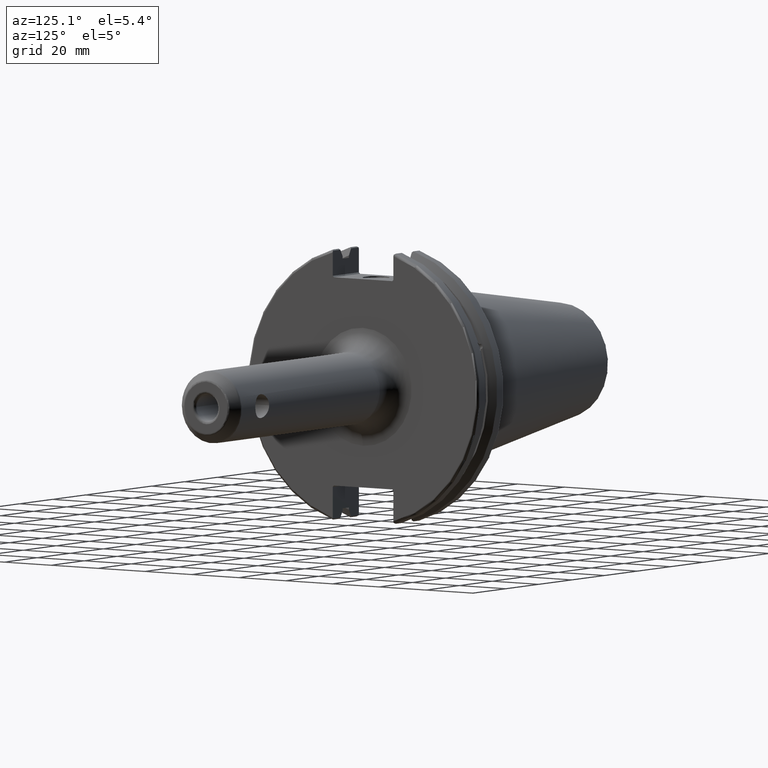
[diagram: clean part render]
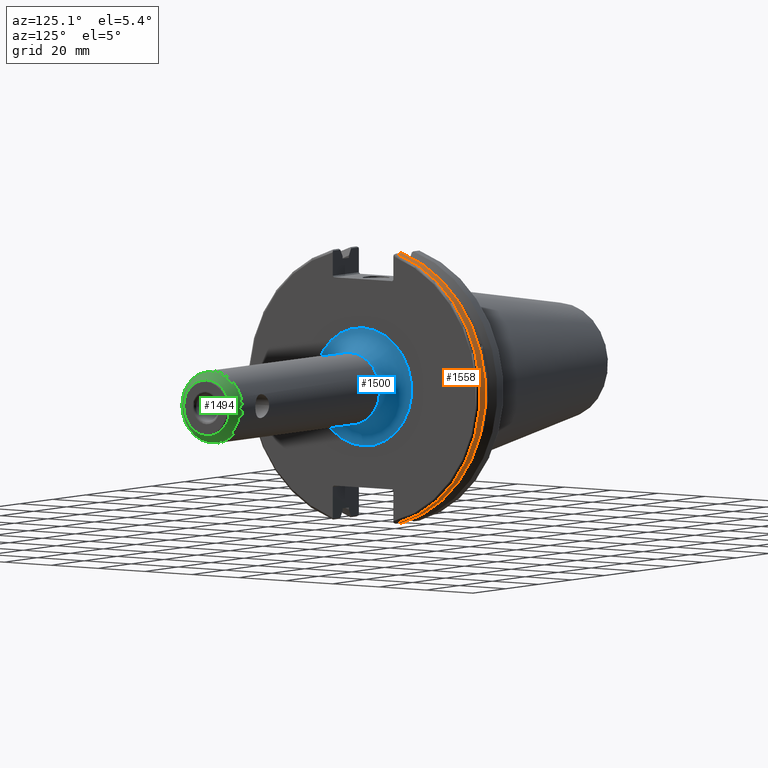
[diagram: same view with three faces highlighted in distinct colors, each labeled with its STEP entity id]
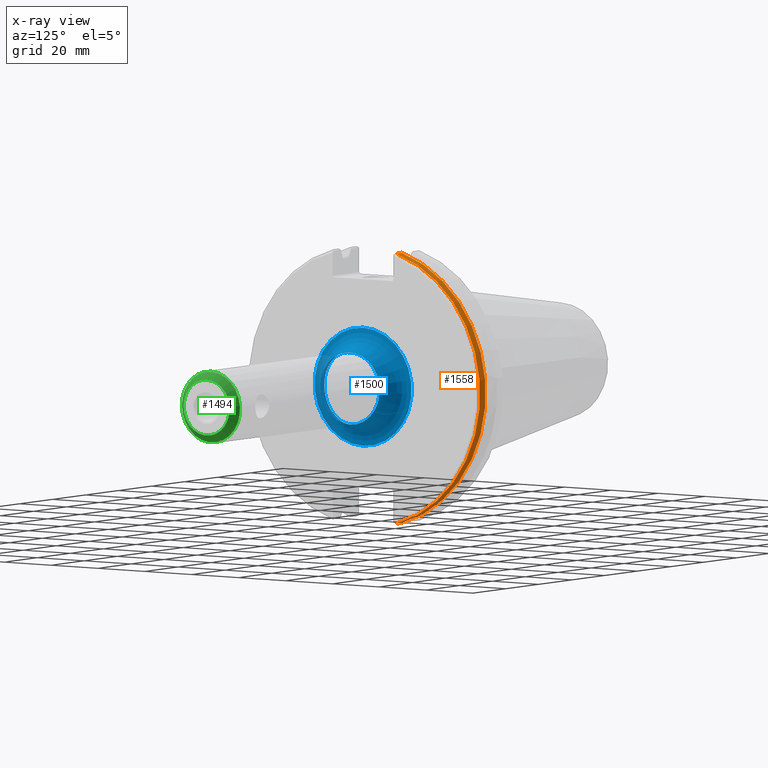
[diagram: x-ray of the same camera — body ghosted, the three highlighted faces saturated]
A machine part, auxiliary view with three faces highlighted in distinct colors.
The next image is the same camera in x-ray (body ghosted, the three faces saturated) — at least one of them is partly hidden behind the body in this view.
Their STEP definitions:

[orange] entity #1558 — the highlighted cylindrical surface (partial cylindrical patch) has radius 49.2125 mm, axis along (1, 0, 0).
#139=CIRCLE('',#1672,49.2125);
#156=CIRCLE('',#1703,49.2125);
#260=FACE_OUTER_BOUND('',#366,.T.);
#366=EDGE_LOOP('',(#1381,#1382,#1383,#1384));
#445=LINE('',#2977,#538);
#474=LINE('',#3176,#567);
#538=VECTOR('',#2037,10.);
#567=VECTOR('',#2134,10.);
#700=VERTEX_POINT('',#2853);
#701=VERTEX_POINT('',#2857);
#732=VERTEX_POINT('',#2956);
#733=VERTEX_POINT('',#2965);
#880=EDGE_CURVE('',#701,#700,#139,.T.);
#922=EDGE_CURVE('',#732,#733,#156,.T.);
#925=EDGE_CURVE('',#701,#732,#445,.T.);
#984=EDGE_CURVE('',#733,#700,#474,.T.);
#1381=ORIENTED_EDGE('',*,*,#922,.F.);
#1382=ORIENTED_EDGE('',*,*,#925,.F.);
#1383=ORIENTED_EDGE('',*,*,#880,.T.);
#1384=ORIENTED_EDGE('',*,*,#984,.F.);
#1485=CYLINDRICAL_SURFACE('',#1738,49.2125);
#1558=ADVANCED_FACE('',(#260),#1485,.T.);
#1672=AXIS2_PLACEMENT_3D('',#2858,#1951,#1952);
#1703=AXIS2_PLACEMENT_3D('',#2966,#2032,#2033);
#1738=AXIS2_PLACEMENT_3D('',#3175,#2132,#2133);
#1951=DIRECTION('center_axis',(1.,0.,0.));
#1952=DIRECTION('ref_axis',(0.,0.,-1.));
#2032=DIRECTION('center_axis',(1.,0.,0.));
#2033=DIRECTION('ref_axis',(0.,1.,-6.12323399573677E-17));
#2037=DIRECTION('',(1.,0.,0.));
#2132=DIRECTION('center_axis',(1.,0.,0.));
#2133=DIRECTION('ref_axis',(0.,1.,0.));
#2134=DIRECTION('',(-1.,0.,0.));
#2853=CARTESIAN_POINT('',(14.6602090340487,13.4317035994433,47.3440544806494));
#2857=CARTESIAN_POINT('',(14.6602090340487,13.4317035994433,-47.3440544806494));
#2858=CARTESIAN_POINT('Origin',(14.6602090340487,0.,0.));
#2956=CARTESIAN_POINT('',(18.05,13.4317035994433,-47.3440544806494));
#2965=CARTESIAN_POINT('',(18.05,13.4317035994433,47.3440544806494));
#2966=CARTESIAN_POINT('Origin',(18.05,0.,0.));
#2977=CARTESIAN_POINT('',(16.8551045170244,13.4317035994433,-47.3440544806494));
#3175=CARTESIAN_POINT('Origin',(16.8551045170244,0.,0.));
#3176=CARTESIAN_POINT('',(16.8551045170244,13.4317035994433,47.3440544806494));

[blue] entity #1500 — the highlighted toroidal blend (fillet) surface has major radius 20.7 mm and minor (blend) radius 8 mm.
#72=TOROIDAL_SURFACE('',#1629,20.7,8.);
#110=CIRCLE('',#1616,12.7);
#111=CIRCLE('',#1617,12.7);
#119=CIRCLE('',#1630,8.);
#120=CIRCLE('',#1631,20.7);
#202=FACE_OUTER_BOUND('',#294,.T.);
#294=EDGE_LOOP('',(#1058,#1059,#1060,#1061,#1062));
#632=VERTEX_POINT('',#2386);
#633=VERTEX_POINT('',#2388);
#639=VERTEX_POINT('',#2409);
#793=EDGE_CURVE('',#633,#632,#110,.T.);
#794=EDGE_CURVE('',#632,#633,#111,.T.);
#803=EDGE_CURVE('',#633,#639,#119,.T.);
#804=EDGE_CURVE('',#639,#639,#120,.T.);
#1058=ORIENTED_EDGE('',*,*,#794,.T.);
#1059=ORIENTED_EDGE('',*,*,#803,.T.);
#1060=ORIENTED_EDGE('',*,*,#804,.T.);
#1061=ORIENTED_EDGE('',*,*,#803,.F.);
#1062=ORIENTED_EDGE('',*,*,#793,.T.);
#1500=ADVANCED_FACE('',(#202),#72,.F.);
#1616=AXIS2_PLACEMENT_3D('',#2389,#1806,#1807);
#1617=AXIS2_PLACEMENT_3D('',#2390,#1808,#1809);
#1629=AXIS2_PLACEMENT_3D('',#2408,#1833,#1834);
#1630=AXIS2_PLACEMENT_3D('',#2410,#1835,#1836);
#1631=AXIS2_PLACEMENT_3D('',#2411,#1837,#1838);
#1806=DIRECTION('center_axis',(-1.,0.,0.));
#1807=DIRECTION('ref_axis',(0.,-1.,-1.22464679914735E-16));
#1808=DIRECTION('center_axis',(-1.,0.,0.));
#1809=DIRECTION('ref_axis',(0.,-1.,-1.22464679914735E-16));
#1833=DIRECTION('center_axis',(-1.,0.,0.));
#1834=DIRECTION('ref_axis',(0.,0.,1.));
#1835=DIRECTION('center_axis',(0.,-1.,1.22464679914735E-16));
#1836=DIRECTION('ref_axis',(0.,-1.22464679914735E-16,-1.));
#1837=DIRECTION('center_axis',(1.,0.,0.));
#1838=DIRECTION('ref_axis',(0.,-1.,-1.22464679914735E-16));
#2386=CARTESIAN_POINT('',(27.05,-12.7,-1.55530143491714E-15));
#2388=CARTESIAN_POINT('',(27.05,-1.55530143491714E-15,-12.7));
#2389=CARTESIAN_POINT('Origin',(27.05,0.,0.));
#2390=CARTESIAN_POINT('Origin',(27.05,0.,0.));
#2408=CARTESIAN_POINT('Origin',(27.05,0.,0.));
#2409=CARTESIAN_POINT('',(19.05,-2.53501887423502E-15,-20.7));
#2410=CARTESIAN_POINT('Origin',(27.05,-2.53501887423502E-15,-20.7));
#2411=CARTESIAN_POINT('Origin',(19.05,0.,0.));

[green] entity #1494 — the highlighted conical surface has half-angle 45 deg.
#103=CIRCLE('',#1607,12.4071067811865);
#104=CIRCLE('',#1608,12.4071067811865);
#108=CIRCLE('',#1613,9.79289321881345);
#109=CIRCLE('',#1614,9.79289321881345);
#179=CONICAL_SURFACE('',#1612,11.1,0.785398163397448);
#196=FACE_OUTER_BOUND('',#285,.T.);
#285=EDGE_LOOP('',(#1025,#1026,#1027,#1028,#1029,#1030));
#390=LINE('',#2383,#483);
#483=VECTOR('',#1800,11.1);
#626=VERTEX_POINT('',#2370);
#627=VERTEX_POINT('',#2371);
#630=VERTEX_POINT('',#2380);
#631=VERTEX_POINT('',#2381);
#784=EDGE_CURVE('',#626,#627,#103,.T.);
#785=EDGE_CURVE('',#627,#626,#104,.T.);
#789=EDGE_CURVE('',#630,#631,#108,.T.);
#790=EDGE_CURVE('',#630,#627,#390,.T.);
#791=EDGE_CURVE('',#631,#630,#109,.T.);
#1025=ORIENTED_EDGE('',*,*,#789,.F.);
#1026=ORIENTED_EDGE('',*,*,#790,.T.);
#1027=ORIENTED_EDGE('',*,*,#784,.F.);
#1028=ORIENTED_EDGE('',*,*,#785,.F.);
#1029=ORIENTED_EDGE('',*,*,#790,.F.);
#1030=ORIENTED_EDGE('',*,*,#791,.F.);
#1494=ADVANCED_FACE('',(#196),#179,.T.);
#1607=AXIS2_PLACEMENT_3D('',#2372,#1786,#1787);
#1608=AXIS2_PLACEMENT_3D('',#2373,#1788,#1789);
#1612=AXIS2_PLACEMENT_3D('',#2379,#1796,#1797);
#1613=AXIS2_PLACEMENT_3D('',#2382,#1798,#1799);
#1614=AXIS2_PLACEMENT_3D('',#2384,#1801,#1802);
#1786=DIRECTION('center_axis',(-1.,0.,0.));
#1787=DIRECTION('ref_axis',(0.,-1.,3.06161699786838E-17));
#1788=DIRECTION('center_axis',(-1.,0.,0.));
#1789=DIRECTION('ref_axis',(0.,-1.,3.06161699786838E-17));
#1796=DIRECTION('center_axis',(-1.,0.,0.));
#1797=DIRECTION('ref_axis',(0.,1.,0.));
#1798=DIRECTION('center_axis',(1.,0.,0.));
#1799=DIRECTION('ref_axis',(0.,-1.,3.06161699786838E-17));
#1800=DIRECTION('',(-0.707106781186548,-0.707106781186547,-8.65956056235493E-17));
#1801=DIRECTION('center_axis',(1.,0.,0.));
#1802=DIRECTION('ref_axis',(0.,-1.,3.06161699786838E-17));
#2370=CARTESIAN_POINT('',(111.392893218813,-1.51943236062595E-15,12.4071067811865));
#2371=CARTESIAN_POINT('',(111.392893218813,-12.4071067811865,-1.51943236062595E-15));
#2372=CARTESIAN_POINT('Origin',(111.392893218813,0.,-1.89929045078244E-15));
#2373=CARTESIAN_POINT('Origin',(111.392893218813,0.,-1.89929045078244E-15));
#2379=CARTESIAN_POINT('Origin',(112.7,0.,0.));
#2380=CARTESIAN_POINT('',(114.007106781187,-9.79289321881345,-1.19928353348117E-15));
#2381=CARTESIAN_POINT('',(114.007106781187,-1.19928353348117E-15,9.79289321881345));
#2382=CARTESIAN_POINT('Origin',(114.007106781187,0.,-1.49910441685146E-15));
#2383=CARTESIAN_POINT('',(112.7,-11.1,-1.35935794705356E-15));
#2384=CARTESIAN_POINT('Origin',(114.007106781187,0.,-1.49910441685146E-15));